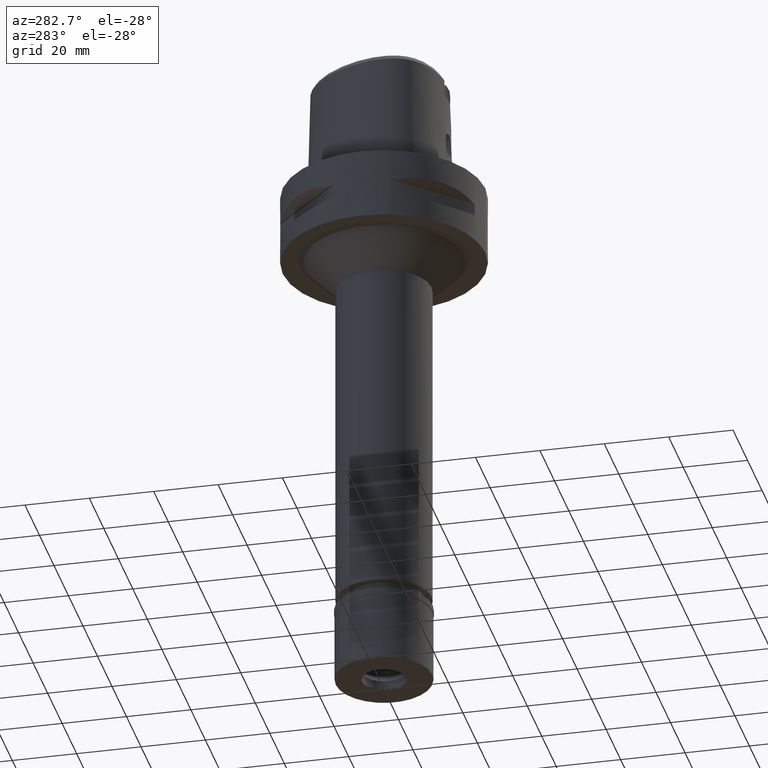
[diagram: clean part render]
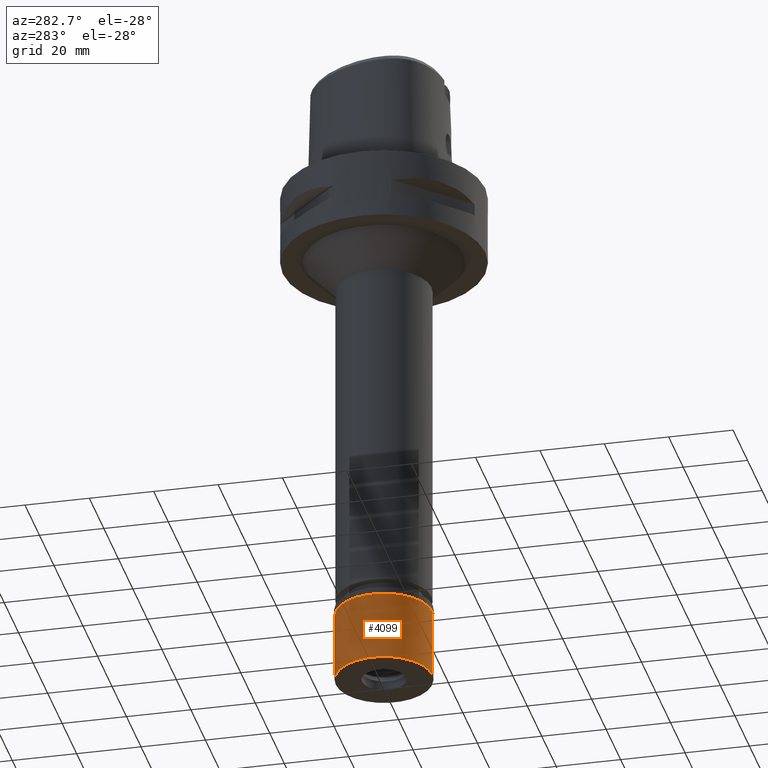
[diagram: same view with one face highlighted and labeled with its STEP entity id]
A machine part, auxiliary view. The second image highlights one B-rep face of the part: STEP entity #4099.
In plain terms, the highlighted cylindrical surface (partial cylindrical patch) has radius 15 mm, axis along (0, 0, -1).
Its self-contained STEP definition (entity closure, byte-faithful):
#95 = AXIS2_PLACEMENT_3D ( 'NONE', #2314, #3357, #3001 ) ;
#209 = FACE_OUTER_BOUND ( 'NONE', #1244, .T. ) ;
#364 = LINE ( 'NONE', #1145, #3748 ) ;
#499 = CIRCLE ( 'NONE', #1179, 15.00000000000000000 ) ;
#534 = ORIENTED_EDGE ( 'NONE', *, *, #4918, .T. ) ;
#649 = ORIENTED_EDGE ( 'NONE', *, *, #4660, .F. ) ;
#1113 = CARTESIAN_POINT ( 'NONE',  ( 0.0000000000000000000, -15.00000000000000000, -23.80000000000000071 ) ) ;
#1145 = CARTESIAN_POINT ( 'NONE',  ( 0.0000000000000000000, 15.00000000000000000, -2.100000000000000089 ) ) ;
#1179 = AXIS2_PLACEMENT_3D ( 'NONE', #2275, #4551, #2597 ) ;
#1244 = EDGE_LOOP ( 'NONE', ( #3195, #649, #534, #3627 ) ) ;
#1670 = EDGE_CURVE ( 'NONE', #4195, #4338, #364, .T. ) ;
#1715 = LINE ( 'NONE', #4102, #3811 ) ;
#1798 = AXIS2_PLACEMENT_3D ( 'NONE', #1954, #4668, #3148 ) ;
#1837 = CYLINDRICAL_SURFACE ( 'NONE', #95, 15.00000000000000000 ) ;
#1954 = CARTESIAN_POINT ( 'NONE',  ( 0.0000000000000000000, 0.0000000000000000000, -2.100000000000000089 ) ) ;
#2275 = CARTESIAN_POINT ( 'NONE',  ( 0.0000000000000000000, 0.0000000000000000000, -23.80000000000000071 ) ) ;
#2314 = CARTESIAN_POINT ( 'NONE',  ( 0.0000000000000000000, 0.0000000000000000000, 0.0000000000000000000 ) ) ;
#2397 = EDGE_CURVE ( 'NONE', #4338, #2682, #499, .T. ) ;
#2531 = DIRECTION ( 'NONE',  ( 0.0000000000000000000, 0.0000000000000000000, -1.000000000000000000 ) ) ;
#2597 = DIRECTION ( 'NONE',  ( 0.0000000000000000000, 1.000000000000000000, 0.0000000000000000000 ) ) ;
#2682 = VERTEX_POINT ( 'NONE', #1113 ) ;
#2689 = DIRECTION ( 'NONE',  ( 0.0000000000000000000, 0.0000000000000000000, -1.000000000000000000 ) ) ;
#2925 = CIRCLE ( 'NONE', #1798, 15.00000000000000000 ) ;
#2977 = CARTESIAN_POINT ( 'NONE',  ( 0.0000000000000000000, 15.00000000000000000, -2.100000000000000089 ) ) ;
#3001 = DIRECTION ( 'NONE',  ( 0.0000000000000000000, -1.000000000000000000, 0.0000000000000000000 ) ) ;
#3148 = DIRECTION ( 'NONE',  ( 0.0000000000000000000, -1.000000000000000000, 0.0000000000000000000 ) ) ;
#3195 = ORIENTED_EDGE ( 'NONE', *, *, #2397, .T. ) ;
#3215 = CARTESIAN_POINT ( 'NONE',  ( 0.0000000000000000000, 15.00000000000000000, -23.80000000000000071 ) ) ;
#3238 = VERTEX_POINT ( 'NONE', #4962 ) ;
#3357 = DIRECTION ( 'NONE',  ( 0.0000000000000000000, 0.0000000000000000000, -1.000000000000000000 ) ) ;
#3627 = ORIENTED_EDGE ( 'NONE', *, *, #1670, .T. ) ;
#3748 = VECTOR ( 'NONE', #2689, 1000.000000000000000 ) ;
#3811 = VECTOR ( 'NONE', #2531, 1000.000000000000000 ) ;
#4099 = ADVANCED_FACE ( 'NONE', ( #209 ), #1837, .T. ) ;
#4102 = CARTESIAN_POINT ( 'NONE',  ( 0.0000000000000000000, -15.00000000000000000, -2.100000000000000089 ) ) ;
#4195 = VERTEX_POINT ( 'NONE', #2977 ) ;
#4338 = VERTEX_POINT ( 'NONE', #3215 ) ;
#4551 = DIRECTION ( 'NONE',  ( 0.0000000000000000000, 0.0000000000000000000, 1.000000000000000000 ) ) ;
#4660 = EDGE_CURVE ( 'NONE', #3238, #2682, #1715, .T. ) ;
#4668 = DIRECTION ( 'NONE',  ( 0.0000000000000000000, 0.0000000000000000000, -1.000000000000000000 ) ) ;
#4918 = EDGE_CURVE ( 'NONE', #3238, #4195, #2925, .T. ) ;
#4962 = CARTESIAN_POINT ( 'NONE',  ( 0.0000000000000000000, -15.00000000000000000, -2.100000000000000089 ) ) ;